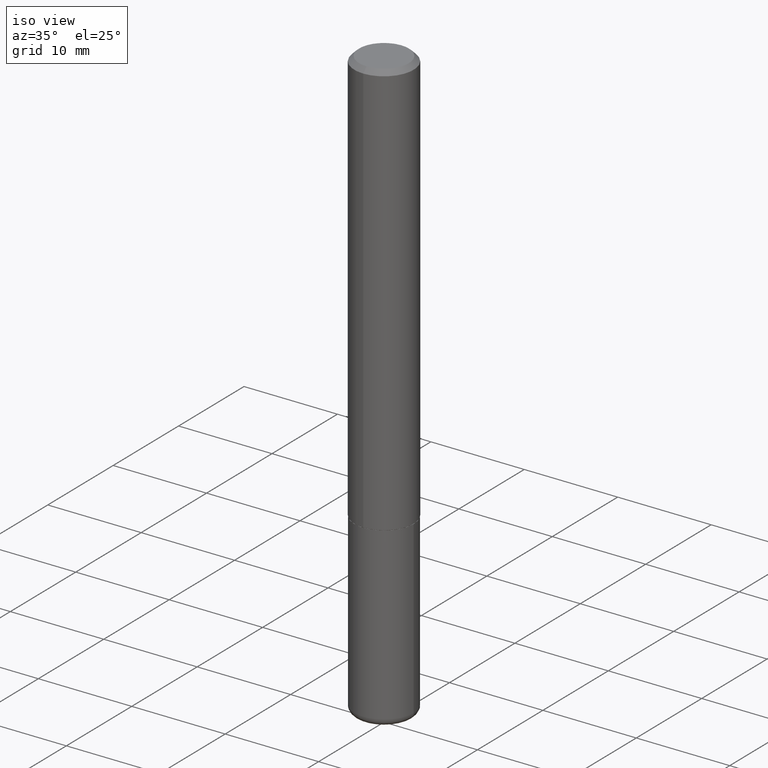
[diagram: clean part render]
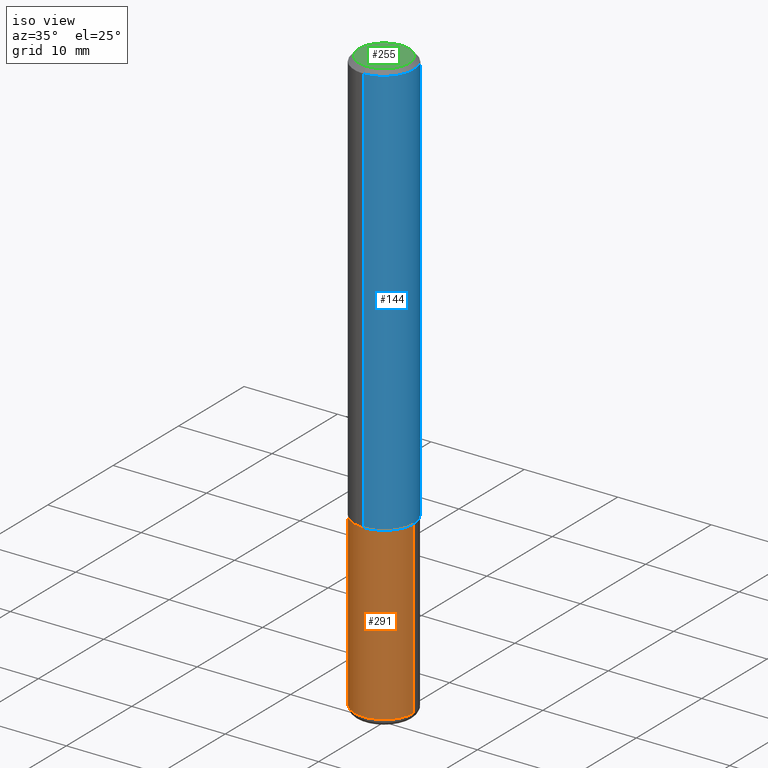
[diagram: same view with three faces highlighted in distinct colors, each labeled with its STEP entity id]
A machine part, iso view with three faces highlighted in distinct colors.
Their STEP definitions:

[orange] entity #291 — the highlighted cylindrical surface (edge-blend (fillet) strip) has radius 3.175 mm, axis along (-0, 0, 1).
#18 = VERTEX_POINT ( 'NONE', #120 ) ;
#20 = DIRECTION ( 'NONE',  ( -2.445468806185136597E-29, 3.491481338843145583E-15, 1.000000000000000000 ) ) ;
#31 = AXIS2_PLACEMENT_3D ( 'NONE', #371, #20, #272 ) ;
#41 = CARTESIAN_POINT ( 'NONE',  ( -0.1250000000000000000, -6.478847205258913284E-15, -1.750000000000000222 ) ) ;
#44 = EDGE_CURVE ( 'NONE', #296, #18, #56, .T. ) ;
#56 = CIRCLE ( 'NONE', #31, 0.1250000000000000000 ) ;
#84 = CYLINDRICAL_SURFACE ( 'NONE', #216, 0.1250000000000000000 ) ;
#97 = DIRECTION ( 'NONE',  ( -2.445468806185136877E-29, 3.491481338843145188E-15, 1.000000000000000000 ) ) ;
#104 = VERTEX_POINT ( 'NONE', #242 ) ;
#120 = CARTESIAN_POINT ( 'NONE',  ( 0.1250000000000001110, -9.496829241653354912E-15, -2.470000000000000195 ) ) ;
#121 = DIRECTION ( 'NONE',  ( -2.445468806185136597E-29, 3.491481338843145583E-15, 1.000000000000000000 ) ) ;
#135 = ORIENTED_EDGE ( 'NONE', *, *, #157, .F. ) ;
#157 = EDGE_CURVE ( 'NONE', #296, #175, #197, .T. ) ;
#175 = VERTEX_POINT ( 'NONE', #41 ) ;
#182 = CARTESIAN_POINT ( 'NONE',  ( 4.279570410823989044E-29, -6.110092342975505460E-15, -1.750000000000000222 ) ) ;
#197 = LINE ( 'NONE', #359, #323 ) ;
#216 = AXIS2_PLACEMENT_3D ( 'NONE', #278, #121, #408 ) ;
#238 = ORIENTED_EDGE ( 'NONE', *, *, #44, .T. ) ;
#242 = CARTESIAN_POINT ( 'NONE',  ( 0.1250000000000000000, -6.982962677686288010E-15, -1.750000000000000222 ) ) ;
#251 = ORIENTED_EDGE ( 'NONE', *, *, #335, .F. ) ;
#256 = DIRECTION ( 'NONE',  ( 1.000000000000000000, -6.982962677686262766E-15, 0.000000000000000000 ) ) ;
#258 = CARTESIAN_POINT ( 'NONE',  ( 0.1250000000000000000, -8.728703347107833388E-16, 6.095220969744919741E-30 ) ) ;
#272 = DIRECTION ( 'NONE',  ( 1.000000000000000000, -6.982962677686270655E-15, 0.000000000000000000 ) ) ;
#278 = CARTESIAN_POINT ( 'NONE',  ( 0.000000000000000000, 0.000000000000000000, 0.000000000000000000 ) ) ;
#291 = ADVANCED_FACE ( 'NONE', ( #405 ), #84, .T. ) ;
#293 = AXIS2_PLACEMENT_3D ( 'NONE', #182, #383, #256 ) ;
#296 = VERTEX_POINT ( 'NONE', #346 ) ;
#322 = ORIENTED_EDGE ( 'NONE', *, *, #366, .T. ) ;
#323 = VECTOR ( 'NONE', #329, 39.37007874015748143 ) ;
#324 = CIRCLE ( 'NONE', #293, 0.1250000000000000000 ) ;
#329 = DIRECTION ( 'NONE',  ( -2.445468806185136877E-29, 3.491481338843145188E-15, 1.000000000000000000 ) ) ;
#335 = EDGE_CURVE ( 'NONE', #175, #104, #324, .T. ) ;
#346 = CARTESIAN_POINT ( 'NONE',  ( -0.1250000000000001110, -7.735780487242444763E-15, -2.470000000000000195 ) ) ;
#352 = VECTOR ( 'NONE', #97, 39.37007874015748143 ) ;
#359 = CARTESIAN_POINT ( 'NONE',  ( -0.1250000000000000000, 8.881784197001252323E-16, -6.148668862818632227E-30 ) ) ;
#366 = EDGE_CURVE ( 'NONE', #18, #104, #411, .T. ) ;
#367 = EDGE_LOOP ( 'NONE', ( #135, #238, #322, #251 ) ) ;
#371 = CARTESIAN_POINT ( 'NONE',  ( 6.040307951277287977E-29, -8.623958906942569995E-15, -2.470000000000000195 ) ) ;
#383 = DIRECTION ( 'NONE',  ( -2.445468806185136597E-29, 3.491481338843145583E-15, 1.000000000000000000 ) ) ;
#405 = FACE_OUTER_BOUND ( 'NONE', #367, .T. ) ;
#408 = DIRECTION ( 'NONE',  ( 1.000000000000000000, -6.982962677686266711E-15, 4.876176775795935793E-29 ) ) ;
#411 = LINE ( 'NONE', #258, #352 ) ;

[blue] entity #144 — the highlighted cylindrical surface (edge-blend (fillet) strip) has radius 3.175 mm, axis along (-0, 0, 1).
#2 = CARTESIAN_POINT ( 'NONE',  ( 4.275790926014379252E-29, -6.108511248481041332E-15, -1.749000000000000110 ) ) ;
#3 = DIRECTION ( 'NONE',  ( -2.444706075479919143E-29, 3.492573612624952424E-15, 1.000000000000000000 ) ) ;
#11 = CARTESIAN_POINT ( 'NONE',  ( 8.728703347107837333E-16, 0.1249999999999999306, -0.02000000000000046185 ) ) ;
#53 = LINE ( 'NONE', #344, #339 ) ;
#55 = CARTESIAN_POINT ( 'NONE',  ( 4.889412150959845398E-31, -6.985147225249911602E-17, -0.02000000000000002470 ) ) ;
#77 = DIRECTION ( 'NONE',  ( -6.982962677686265133E-15, -1.000000000000000000, 4.370956789862812472E-15 ) ) ;
#89 = AXIS2_PLACEMENT_3D ( 'NONE', #236, #355, #195 ) ;
#105 = CARTESIAN_POINT ( 'NONE',  ( 8.881784197001479121E-16, 0.1249999999999941019, -1.749000000000000554 ) ) ;
#123 = VECTOR ( 'NONE', #3, 39.37007874015748143 ) ;
#128 = CIRCLE ( 'NONE', #363, 0.1250000000000002498 ) ;
#129 = VERTEX_POINT ( 'NONE', #164 ) ;
#130 = CYLINDRICAL_SURFACE ( 'NONE', #89, 0.1250000000000001110 ) ;
#132 = EDGE_CURVE ( 'NONE', #292, #200, #128, .T. ) ;
#143 = DIRECTION ( 'NONE',  ( -2.444706075479919143E-29, 3.492573612624952424E-15, 1.000000000000000000 ) ) ;
#144 = ADVANCED_FACE ( 'NONE', ( #395 ), #130, .T. ) ;
#164 = CARTESIAN_POINT ( 'NONE',  ( -8.575622497214408537E-16, -0.1250000000000000555, -0.01999999999999959102 ) ) ;
#168 = ORIENTED_EDGE ( 'NONE', *, *, #307, .F. ) ;
#172 = ORIENTED_EDGE ( 'NONE', *, *, #132, .T. ) ;
#179 = ORIENTED_EDGE ( 'NONE', *, *, #202, .T. ) ;
#195 = DIRECTION ( 'NONE',  ( -6.982962677686266711E-15, -1.000000000000000000, 3.492573612624952818E-15 ) ) ;
#200 = VERTEX_POINT ( 'NONE', #105 ) ;
#202 = EDGE_CURVE ( 'NONE', #200, #231, #233, .T. ) ;
#231 = VERTEX_POINT ( 'NONE', #11 ) ;
#233 = LINE ( 'NONE', #361, #123 ) ;
#236 = CARTESIAN_POINT ( 'NONE',  ( 0.000000000000000000, 0.000000000000000000, 0.000000000000000000 ) ) ;
#246 = DIRECTION ( 'NONE',  ( -2.444706075479919424E-29, 3.492573612624952424E-15, 1.000000000000000000 ) ) ;
#288 = AXIS2_PLACEMENT_3D ( 'NONE', #55, #246, #373 ) ;
#292 = VERTEX_POINT ( 'NONE', #340 ) ;
#294 = EDGE_LOOP ( 'NONE', ( #172, #179, #341, #168 ) ) ;
#307 = EDGE_CURVE ( 'NONE', #292, #129, #53, .T. ) ;
#313 = EDGE_CURVE ( 'NONE', #129, #231, #418, .T. ) ;
#334 = DIRECTION ( 'NONE',  ( -2.444706075479919424E-29, 3.492573612624952424E-15, 1.000000000000000000 ) ) ;
#339 = VECTOR ( 'NONE', #143, 39.37007874015748143 ) ;
#340 = CARTESIAN_POINT ( 'NONE',  ( -8.728703347107422194E-16, -0.1250000000000063560, -1.748999999999999666 ) ) ;
#341 = ORIENTED_EDGE ( 'NONE', *, *, #313, .F. ) ;
#344 = CARTESIAN_POINT ( 'NONE',  ( -8.728703347107841277E-16, -0.1250000000000001110, 4.365717015781194967E-16 ) ) ;
#355 = DIRECTION ( 'NONE',  ( -2.444706075479919424E-29, 3.492573612624952424E-15, 1.000000000000000000 ) ) ;
#361 = CARTESIAN_POINT ( 'NONE',  ( 8.881784197001260212E-16, 0.1250000000000001110, -4.365717015781194967E-16 ) ) ;
#363 = AXIS2_PLACEMENT_3D ( 'NONE', #2, #334, #77 ) ;
#373 = DIRECTION ( 'NONE',  ( -6.982962677686265922E-15, -1.000000000000000000, 3.483106191921935554E-15 ) ) ;
#395 = FACE_OUTER_BOUND ( 'NONE', #294, .T. ) ;
#418 = CIRCLE ( 'NONE', #288, 0.1250000000000000000 ) ;

[green] entity #255 — the highlighted planar face has unit normal (0, -0, -1).
#4 = CIRCLE ( 'NONE', #410, 0.1050000000000000794 ) ;
#48 = FACE_OUTER_BOUND ( 'NONE', #247, .T. ) ;
#51 = PLANE ( 'NONE',  #356 ) ;
#58 = DIRECTION ( 'NONE',  ( -2.444706075479919424E-29, 3.492573612624952424E-15, 1.000000000000000000 ) ) ;
#139 = DIRECTION ( 'NONE',  ( 2.444706075479919143E-29, -3.492573612624952424E-15, -1.000000000000000000 ) ) ;
#145 = DIRECTION ( 'NONE',  ( -6.982962677686265133E-15, -1.000000000000000000, 3.492573612624952029E-15 ) ) ;
#151 = ORIENTED_EDGE ( 'NONE', *, *, #261, .T. ) ;
#170 = VERTEX_POINT ( 'NONE', #387 ) ;
#213 = CARTESIAN_POINT ( 'NONE',  ( 7.332110811570584188E-16, 0.1050000000000000794, -3.986767286278284697E-16 ) ) ;
#234 = VERTEX_POINT ( 'NONE', #276 ) ;
#235 = CIRCLE ( 'NONE', #263, 0.1050000000000000794 ) ;
#243 = EDGE_CURVE ( 'NONE', #234, #170, #235, .T. ) ;
#247 = EDGE_LOOP ( 'NONE', ( #393, #151 ) ) ;
#255 = ADVANCED_FACE ( 'NONE', ( #48 ), #51, .F. ) ;
#261 = EDGE_CURVE ( 'NONE', #170, #234, #4, .T. ) ;
#263 = AXIS2_PLACEMENT_3D ( 'NONE', #336, #58, #375 ) ;
#276 = CARTESIAN_POINT ( 'NONE',  ( 8.030407079339210267E-16, 0.1050000000000000794, -4.306332279300366944E-16 ) ) ;
#303 = DIRECTION ( 'NONE',  ( 6.982962677686265922E-15, 1.000000000000000000, -3.492573612624952424E-15 ) ) ;
#336 = CARTESIAN_POINT ( 'NONE',  ( 1.562484959903565573E-45, -2.232208524295203650E-31, -6.391299860441647393E-17 ) ) ;
#342 = DIRECTION ( 'NONE',  ( -2.444706075479919424E-29, 3.492573612624952424E-15, 1.000000000000000000 ) ) ;
#356 = AXIS2_PLACEMENT_3D ( 'NONE', #213, #139, #303 ) ;
#375 = DIRECTION ( 'NONE',  ( -6.982962677686265133E-15, -1.000000000000000000, 3.492573612624952029E-15 ) ) ;
#387 = CARTESIAN_POINT ( 'NONE',  ( -7.889572697437260153E-16, -0.1050000000000000794, 3.028072307212038451E-16 ) ) ;
#393 = ORIENTED_EDGE ( 'NONE', *, *, #243, .T. ) ;
#406 = CARTESIAN_POINT ( 'NONE',  ( 1.562484959903565573E-45, -2.232208524295203650E-31, -6.391299860441647393E-17 ) ) ;
#410 = AXIS2_PLACEMENT_3D ( 'NONE', #406, #342, #145 ) ;